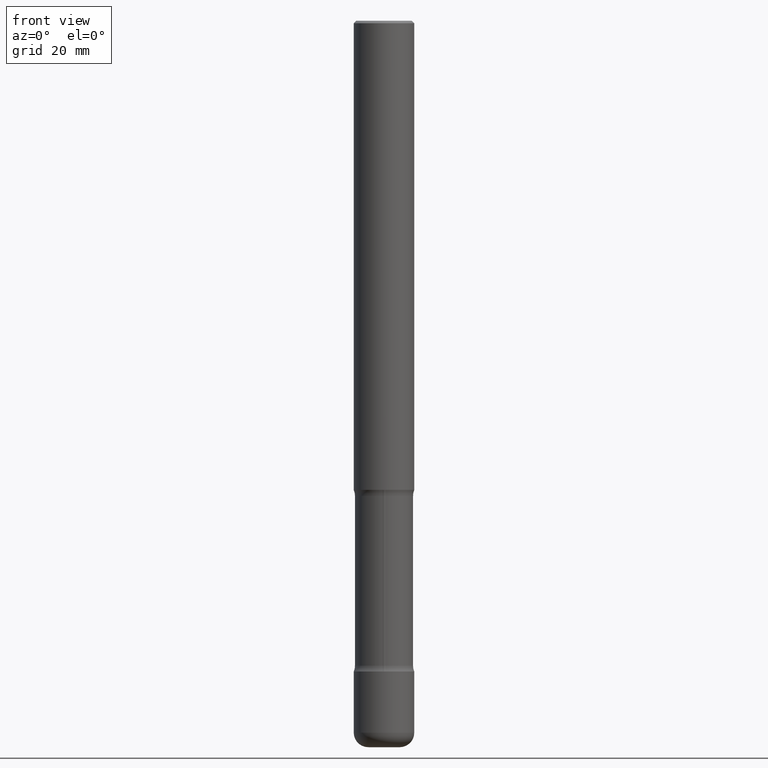
[diagram: clean part render]
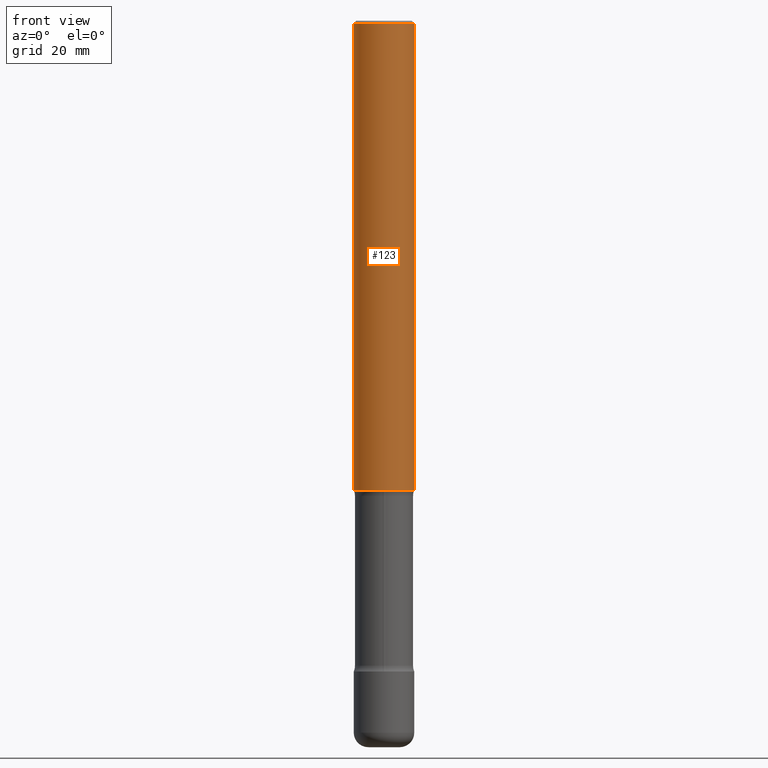
[diagram: same view with one face highlighted and labeled with its STEP entity id]
A machine part, front view. The second image highlights one B-rep face of the part: STEP entity #123.
In plain terms, the highlighted cylindrical surface (edge-blend (fillet) strip) has radius 6.35 mm, axis along (-0, 0, 1).
Its self-contained STEP definition (entity closure, byte-faithful):
#14 = VERTEX_POINT ( 'NONE', #96 ) ;
#50 = DIRECTION ( 'NONE',  ( -2.445468806185136597E-29, 3.491481338843145583E-15, 1.000000000000000000 ) ) ;
#83 = VECTOR ( 'NONE', #718, 39.37007874015748143 ) ;
#85 = DIRECTION ( 'NONE',  ( -2.445468806185136597E-29, 3.491481338843145583E-15, 1.000000000000000000 ) ) ;
#93 = CARTESIAN_POINT ( 'NONE',  ( 4.890937612370287172E-31, -6.982962677686310098E-17, -0.02000000000000005593 ) ) ;
#96 = CARTESIAN_POINT ( 'NONE',  ( -0.2499999999999999722, -5.023303067996774148E-15, -3.875000000000000444 ) ) ;
#123 = ADVANCED_FACE ( 'NONE', ( #196 ), #390, .T. ) ;
#127 = CARTESIAN_POINT ( 'NONE',  ( 0.000000000000000000, 0.000000000000000000, 0.000000000000000000 ) ) ;
#160 = AXIS2_PLACEMENT_3D ( 'NONE', #476, #50, #778 ) ;
#196 = FACE_OUTER_BOUND ( 'NONE', #378, .T. ) ;
#200 = VERTEX_POINT ( 'NONE', #683 ) ;
#231 = LINE ( 'NONE', #291, #83 ) ;
#232 = VECTOR ( 'NONE', #244, 39.37007874015748143 ) ;
#244 = DIRECTION ( 'NONE',  ( -2.445468806185136877E-29, 3.491481338843145188E-15, 1.000000000000000000 ) ) ;
#247 = AXIS2_PLACEMENT_3D ( 'NONE', #127, #498, #387 ) ;
#254 = ORIENTED_EDGE ( 'NONE', *, *, #530, .F. ) ;
#291 = CARTESIAN_POINT ( 'NONE',  ( -0.2499999999999998612, 1.776356839400249479E-15, -1.229733772563725745E-29 ) ) ;
#301 = EDGE_CURVE ( 'NONE', #200, #398, #779, .T. ) ;
#363 = VERTEX_POINT ( 'NONE', #408 ) ;
#378 = EDGE_LOOP ( 'NONE', ( #254, #549, #507, #739 ) ) ;
#387 = DIRECTION ( 'NONE',  ( 1.000000000000000000, -6.982962677686266711E-15, 4.876176775795935793E-29 ) ) ;
#390 = CYLINDRICAL_SURFACE ( 'NONE', #247, 0.2499999999999998612 ) ;
#398 = VERTEX_POINT ( 'NONE', #514 ) ;
#408 = CARTESIAN_POINT ( 'NONE',  ( 0.2500000000000000000, -1.527523085743875734E-14, -3.875000000000000444 ) ) ;
#430 = AXIS2_PLACEMENT_3D ( 'NONE', #93, #85, #467 ) ;
#438 = EDGE_CURVE ( 'NONE', #14, #363, #511, .T. ) ;
#467 = DIRECTION ( 'NONE',  ( 1.000000000000000000, -6.982962677686266711E-15, 0.000000000000000000 ) ) ;
#476 = CARTESIAN_POINT ( 'NONE',  ( 9.476191623967405434E-29, -1.352949018801719066E-14, -3.875000000000000444 ) ) ;
#495 = LINE ( 'NONE', #551, #232 ) ;
#498 = DIRECTION ( 'NONE',  ( -2.445468806185136597E-29, 3.491481338843145583E-15, 1.000000000000000000 ) ) ;
#507 = ORIENTED_EDGE ( 'NONE', *, *, #615, .T. ) ;
#511 = CIRCLE ( 'NONE', #160, 0.2500000000000000000 ) ;
#514 = CARTESIAN_POINT ( 'NONE',  ( 0.2499999999999997224, -1.784954126219744217E-15, -0.02000000000000005593 ) ) ;
#530 = EDGE_CURVE ( 'NONE', #14, #200, #231, .T. ) ;
#549 = ORIENTED_EDGE ( 'NONE', *, *, #438, .T. ) ;
#551 = CARTESIAN_POINT ( 'NONE',  ( 0.2499999999999998612, -1.745740669421565692E-15, 1.219044193948983248E-29 ) ) ;
#615 = EDGE_CURVE ( 'NONE', #363, #398, #495, .T. ) ;
#683 = CARTESIAN_POINT ( 'NONE',  ( -0.2499999999999997224, 1.675911042644701605E-15, -0.02000000000000005593 ) ) ;
#718 = DIRECTION ( 'NONE',  ( -2.445468806185136877E-29, 3.491481338843145188E-15, 1.000000000000000000 ) ) ;
#739 = ORIENTED_EDGE ( 'NONE', *, *, #301, .F. ) ;
#778 = DIRECTION ( 'NONE',  ( 1.000000000000000000, -6.982962677686270655E-15, 0.000000000000000000 ) ) ;
#779 = CIRCLE ( 'NONE', #430, 0.2499999999999997224 ) ;